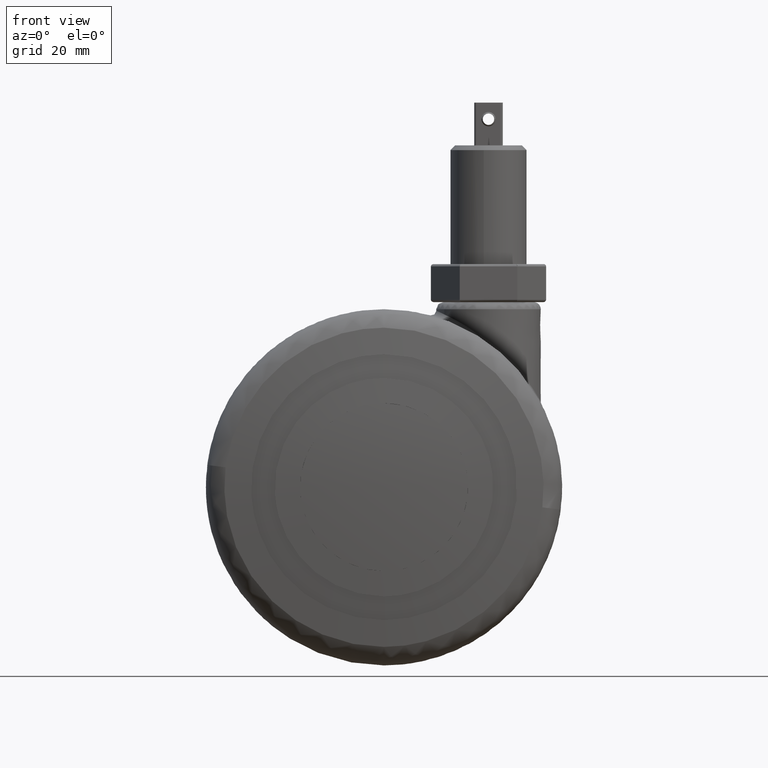
[diagram: clean part render]
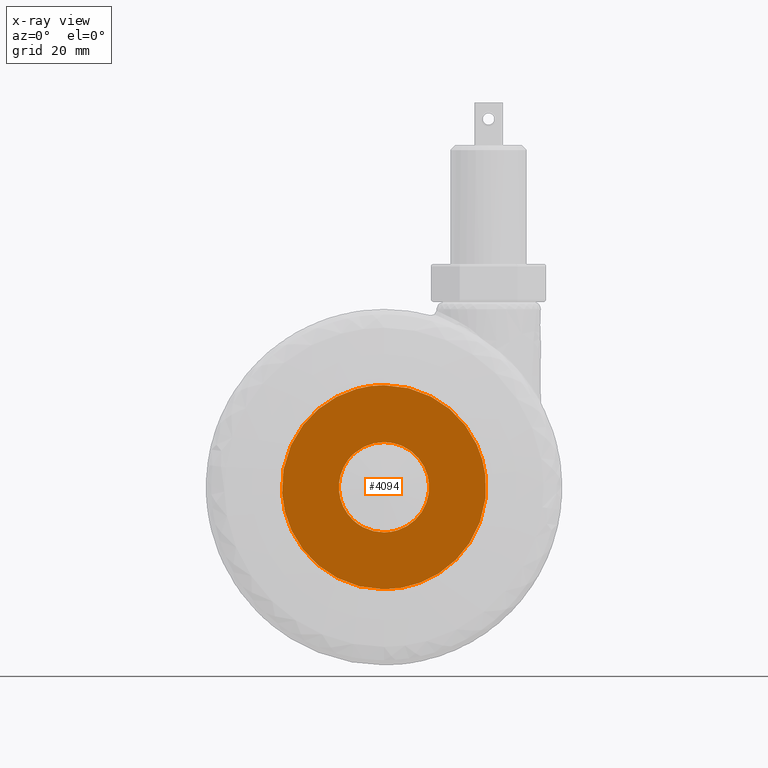
[diagram: x-ray — body ghosted, one internal face saturated and labeled with its STEP entity id]
A machine part, front view, then the same camera in x-ray: the body is ghosted and one INTERNAL B-rep face — a face not visible from any outside direction — is saturated and labeled: STEP entity #4094.
In plain terms, the highlighted face is a freeform B-spline surface patch.
Its self-contained STEP definition (entity closure, byte-faithful):
#2682=CARTESIAN_POINT('',(-6.216222925323244,-18.499999999999989,7.183910671957179));
#2683=VERTEX_POINT('',#2682);
#2684=CARTESIAN_POINT('',(0.0,-18.500000000000000,9.500000000000000));
#2685=VERTEX_POINT('',#2684);
#2686=CARTESIAN_POINT('',(-6.216222925323244,-18.499999999999989,7.183910671957179));
#2687=CARTESIAN_POINT('',(-3.539584870220835,-18.499999999999993,9.499999999999998));
#2688=CARTESIAN_POINT('',(0.0,-18.500000000000000,9.500000000000000));
#2696=(BOUNDED_CURVE()B_SPLINE_CURVE(2,(#2686,#2687,#2688),.UNSPECIFIED.,.F.,.U.)B_SPLINE_CURVE_WITH_KNOTS((3,3),(0.885882200207027,1.0),.UNSPECIFIED.)CURVE()GEOMETRIC_REPRESENTATION_ITEM()RATIONAL_B_SPLINE_CURVE((0.854663313254477,0.866302681178908,1.0))REPRESENTATION_ITEM(''));
#2697=EDGE_CURVE('',#2683,#2685,#2696,.T.);
#2699=CARTESIAN_POINT('',(0.0,-18.500000000000000,-9.500000000000000));
#2700=VERTEX_POINT('',#2699);
#2701=CARTESIAN_POINT('',(0.0,-18.500000000000000,9.500000000000000));
#2702=CARTESIAN_POINT('',(9.500000000000000,-18.500000000000000,9.500000000000000));
#2703=CARTESIAN_POINT('',(9.500000000000000,-18.500000000000000,0.0));
#2704=CARTESIAN_POINT('',(9.500000000000000,-18.500000000000000,-9.500000000000000));
#2705=CARTESIAN_POINT('',(0.0,-18.500000000000000,-9.500000000000000));
#2713=(BOUNDED_CURVE()B_SPLINE_CURVE(2,(#2701,#2702,#2703,#2704,#2705),.UNSPECIFIED.,.F.,.U.)B_SPLINE_CURVE_WITH_KNOTS((3,2,3),(0.0,0.250000000000000,0.500000000000000),.UNSPECIFIED.)CURVE()GEOMETRIC_REPRESENTATION_ITEM()RATIONAL_B_SPLINE_CURVE((1.0,0.707106781186548,1.0,0.707106781186548,1.0))REPRESENTATION_ITEM(''));
#2714=EDGE_CURVE('',#2685,#2700,#2713,.T.);
#2716=CARTESIAN_POINT('',(-6.418106398298619,-18.500000000000000,-7.004135225716142));
#2717=VERTEX_POINT('',#2716);
#2718=CARTESIAN_POINT('',(0.0,-18.500000000000000,-9.500000000000000));
#2719=CARTESIAN_POINT('',(-3.694347056249020,-18.500000000000004,-9.500000000000002));
#2720=CARTESIAN_POINT('',(-6.418106398298620,-18.499999999999996,-7.004135225716142));
#2728=(BOUNDED_CURVE()B_SPLINE_CURVE(2,(#2718,#2719,#2720),.UNSPECIFIED.,.F.,.U.)B_SPLINE_CURVE_WITH_KNOTS((3,3),(0.500000000000000,0.618415184339056),.UNSPECIFIED.)CURVE()GEOMETRIC_REPRESENTATION_ITEM()RATIONAL_B_SPLINE_CURVE((1.0,0.861267982010183,0.853959783892313))REPRESENTATION_ITEM(''));
#2729=EDGE_CURVE('',#2700,#2717,#2728,.T.);
#2826=CARTESIAN_POINT('',(-6.418106398298620,-18.499999999999996,-7.004135225716142));
#2827=CARTESIAN_POINT('',(-9.500000000000000,-18.500000000000000,-4.180100972826301));
#2828=CARTESIAN_POINT('',(-9.500000000000000,-18.500000000000000,0.0));
#2829=CARTESIAN_POINT('',(-9.499999999999998,-18.500000000000004,4.342465216221496));
#2830=CARTESIAN_POINT('',(-6.216222925323244,-18.499999999999989,7.183910671957179));
#2838=(BOUNDED_CURVE()B_SPLINE_CURVE(2,(#2826,#2827,#2828,#2829,#2830),.UNSPECIFIED.,.F.,.U.)B_SPLINE_CURVE_WITH_KNOTS((3,2,3),(0.618415184339056,0.750000000000000,0.885882200207027),.UNSPECIFIED.)CURVE()GEOMETRIC_REPRESENTATION_ITEM()RATIONAL_B_SPLINE_CURVE((0.853959783892313,0.845838799176365,1.0,0.840804100007640,0.854663313254477))REPRESENTATION_ITEM(''));
#2839=EDGE_CURVE('',#2717,#2683,#2838,.T.);
#2898=CARTESIAN_POINT('',(21.349708565958721,-18.499999999998909,2.537704503605523));
#2899=VERTEX_POINT('',#2898);
#2900=CARTESIAN_POINT('',(0.0,-18.500000000000000,-21.500000000000000));
#2901=VERTEX_POINT('',#2900);
#2902=CARTESIAN_POINT('',(21.349708565958725,-18.499999999998906,2.537704503605523));
#2903=CARTESIAN_POINT('',(21.500000000000000,-18.499999999999996,1.273302635035737));
#2904=CARTESIAN_POINT('',(21.500000000000000,-18.500000000000000,0.0));
#2905=CARTESIAN_POINT('',(21.499999999999996,-18.500000000000000,-21.499999999999996));
#2906=CARTESIAN_POINT('',(0.0,-18.500000000000000,-21.500000000000000));
#2914=(BOUNDED_CURVE()B_SPLINE_CURVE(2,(#2902,#2903,#2904,#2905,#2906),.UNSPECIFIED.,.F.,.U.)B_SPLINE_CURVE_WITH_KNOTS((3,2,3),(0.229562723196799,0.250000000000000,0.500000000000000),.UNSPECIFIED.)CURVE()GEOMETRIC_REPRESENTATION_ITEM()RATIONAL_B_SPLINE_CURVE((0.956027243573750,0.976056240853315,1.0,0.707106781186548,1.0))REPRESENTATION_ITEM(''));
#2915=EDGE_CURVE('',#2899,#2901,#2914,.T.);
#2956=CARTESIAN_POINT('',(-21.459898788469278,-18.500000000000199,-1.312533423784100));
#2957=VERTEX_POINT('',#2956);
#2963=CARTESIAN_POINT('',(0.0,-18.500000000000000,-21.500000000000000));
#2964=CARTESIAN_POINT('',(-20.225190047112456,-18.500000000000000,-21.499999999999996));
#2965=CARTESIAN_POINT('',(-21.459898788469278,-18.500000000000206,-1.312533423784100));
#2973=(BOUNDED_CURVE()B_SPLINE_CURVE(2,(#2963,#2964,#2965),.UNSPECIFIED.,.F.,.U.)B_SPLINE_CURVE_WITH_KNOTS((3,3),(0.500000000000000,0.739333044063111),.UNSPECIFIED.)CURVE()GEOMETRIC_REPRESENTATION_ITEM()RATIONAL_B_SPLINE_CURVE((1.0,0.719603897423734,0.976072217031549))REPRESENTATION_ITEM(''));
#2974=EDGE_CURVE('',#2901,#2957,#2973,.T.);
#3001=CARTESIAN_POINT('',(0.0,-18.500000000000000,21.500000000000000));
#3002=VERTEX_POINT('',#3001);
#3003=CARTESIAN_POINT('',(0.0,-18.500000000000000,21.500000000000000));
#3004=CARTESIAN_POINT('',(19.095780718150952,-18.500000000000004,21.499999999999993));
#3005=CARTESIAN_POINT('',(21.349708565958725,-18.499999999998906,2.537704503605523));
#3013=(BOUNDED_CURVE()B_SPLINE_CURVE(2,(#3003,#3004,#3005),.UNSPECIFIED.,.F.,.U.)B_SPLINE_CURVE_WITH_KNOTS((3,3),(0.0,0.229562723196799),.UNSPECIFIED.)CURVE()GEOMETRIC_REPRESENTATION_ITEM()RATIONAL_B_SPLINE_CURVE((1.0,0.731050540333232,0.956027243573750))REPRESENTATION_ITEM(''));
#3014=EDGE_CURVE('',#3002,#2899,#3013,.T.);
#3016=CARTESIAN_POINT('',(-21.459898788469278,-18.500000000000206,-1.312533423784100));
#3017=CARTESIAN_POINT('',(-21.500000000000000,-18.500000000000000,-0.656879308545626));
#3018=CARTESIAN_POINT('',(-21.500000000000000,-18.500000000000000,0.0));
#3019=CARTESIAN_POINT('',(-21.499999999999996,-18.500000000000000,21.499999999999996));
#3020=CARTESIAN_POINT('',(0.0,-18.500000000000000,21.500000000000000));
#3028=(BOUNDED_CURVE()B_SPLINE_CURVE(2,(#3016,#3017,#3018,#3019,#3020),.UNSPECIFIED.,.F.,.U.)B_SPLINE_CURVE_WITH_KNOTS((3,2,3),(0.739333044063111,0.750000000000000,1.0),.UNSPECIFIED.)CURVE()GEOMETRIC_REPRESENTATION_ITEM()RATIONAL_B_SPLINE_CURVE((0.976072217031549,0.987502883762813,1.0,0.707106781186548,1.0))REPRESENTATION_ITEM(''));
#3029=EDGE_CURVE('',#2957,#3002,#3028,.T.);
#4077=CARTESIAN_POINT('',(-23.647327836727591,-18.500000000000000,23.647849916657659));
#4078=CARTESIAN_POINT('',(-23.647327836727591,-18.500000000000000,-23.647851070007530));
#4079=CARTESIAN_POINT('',(23.647458934163541,-18.500000000000000,23.647849916657659));
#4080=CARTESIAN_POINT('',(23.647458934163541,-18.500000000000000,-23.647851070007530));
#4081=B_SPLINE_SURFACE_WITH_KNOTS('',1,1,((#4077,#4079),(#4078,#4080)),.UNSPECIFIED.,.F.,.F.,.U.,(2,2),(2,2),(0.0,47.295700986665203),(0.0,47.294786770891143),.UNSPECIFIED.);
#4082=ORIENTED_EDGE('',*,*,#3014,.T.);
#4083=ORIENTED_EDGE('',*,*,#2915,.T.);
#4084=ORIENTED_EDGE('',*,*,#2974,.T.);
#4085=ORIENTED_EDGE('',*,*,#3029,.T.);
#4086=EDGE_LOOP('',(#4082,#4083,#4084,#4085));
#4087=FACE_OUTER_BOUND('',#4086,.T.);
#4088=ORIENTED_EDGE('',*,*,#2714,.F.);
#4089=ORIENTED_EDGE('',*,*,#2697,.F.);
#4090=ORIENTED_EDGE('',*,*,#2839,.F.);
#4091=ORIENTED_EDGE('',*,*,#2729,.F.);
#4092=EDGE_LOOP('',(#4088,#4089,#4090,#4091));
#4093=FACE_BOUND('',#4092,.T.);
#4094=ADVANCED_FACE('',(#4087,#4093),#4081,.F.);